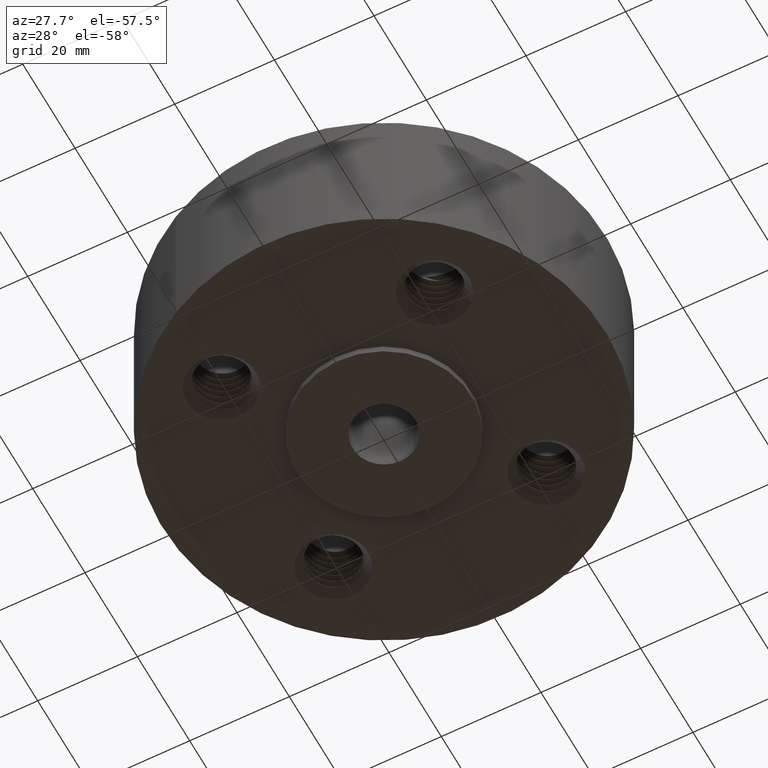
[diagram: clean part render]
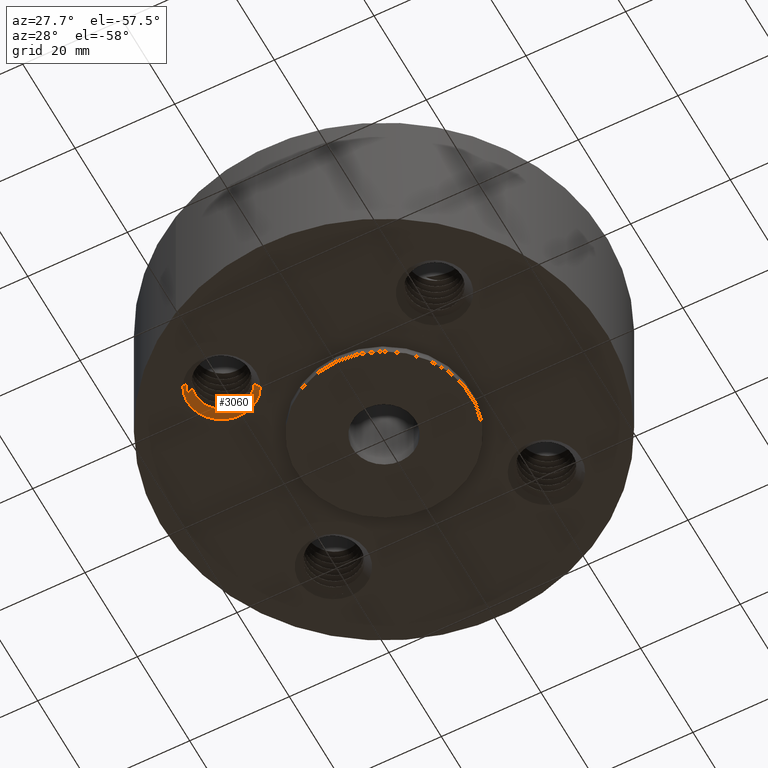
[diagram: same view with one face highlighted and labeled with its STEP entity id]
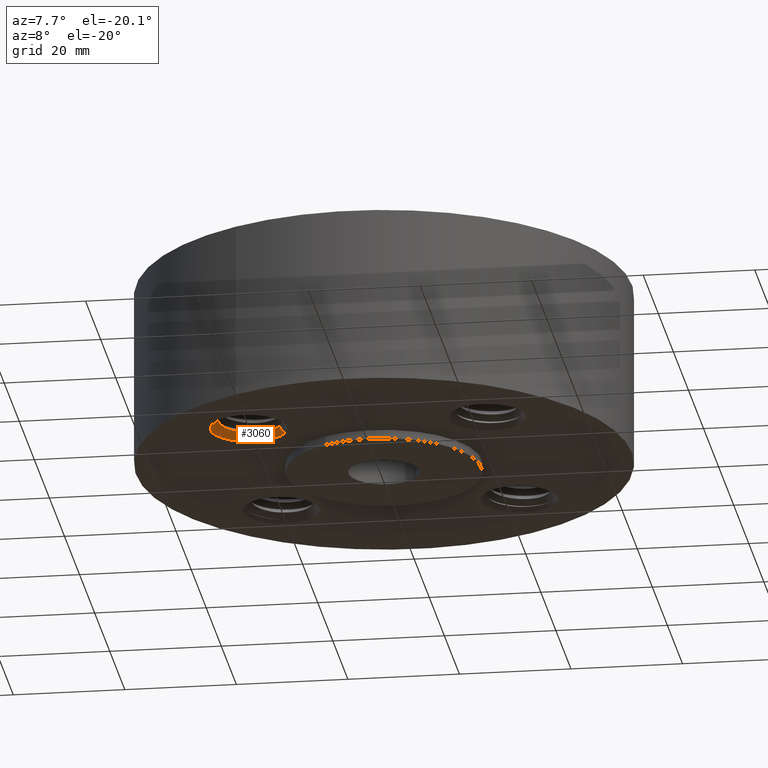
[diagram: same view with one face highlighted and labeled with its STEP entity id]
A machine part, auxiliary view. The second image highlights one B-rep face of the part: STEP entity #3060.
A second angle (auxiliary view) of the same face is appended — the face is thin or edge-on in the first view.
In plain terms, the highlighted conical surface has half-angle 45 deg.
Its self-contained STEP definition (entity closure, byte-faithful):
#2687=AXIS2_PLACEMENT_3D('Circle Axis2P3D',#2685,#2686,$) ;
#2972=AXIS2_PLACEMENT_3D('Cone Axis2P3D',#2969,#2970,#2971) ;
#3047=AXIS2_PLACEMENT_3D('Circle Axis2P3D',#3045,#3046,$) ;
#2685=CARTESIAN_POINT('Axis2P3D Location',(-0.841457069615,-0.841457069615,0.)) ;
#2689=CARTESIAN_POINT('Vertex',(-1.07928194389,-0.971381390578,0.)) ;
#2691=CARTESIAN_POINT('Vertex',(-0.603632195342,-0.711532748653,0.)) ;
#2969=CARTESIAN_POINT('Axis2P3D Location',(-0.841457069615,-0.841457069615,0.0600000000002)) ;
#2975=CARTESIAN_POINT('Control Point',(-1.08885207211,-0.877454643638,0.0209997748122)) ;
#2976=CARTESIAN_POINT('Control Point',(-1.07450743228,-0.88601392063,0.033962479129)) ;
#2977=CARTESIAN_POINT('Control Point',(-1.0597261134,-0.892728257016,0.0469561362139)) ;
#2978=CARTESIAN_POINT('Control Point',(-1.04485704786,-0.897577020166,0.0600000000002)) ;
#2979=CARTESIAN_POINT('Vertex',(-1.08885207211,-0.877454643641,0.0209997748122)) ;
#2981=CARTESIAN_POINT('Vertex',(-1.04485704786,-0.897577020166,0.0600000000002)) ;
#2985=CARTESIAN_POINT('Control Point',(-1.08885207211,-0.877454643641,0.0209997748122)) ;
#2986=CARTESIAN_POINT('Control Point',(-1.08385240522,-0.906674475321,0.0217399723361)) ;
#2987=CARTESIAN_POINT('Control Point',(-1.07362674676,-0.934843819217,0.0224799472173)) ;
#2988=CARTESIAN_POINT('Control Point',(-1.0589044293,-0.96024910362,0.0232200541298)) ;
#2989=CARTESIAN_POINT('Vertex',(-1.0589044293,-0.96024910362,0.0232200541298)) ;
#2992=CARTESIAN_POINT('Line Origine',(-1.06048512473,-0.96111264147,0.0214188612839)) ;
#2997=CARTESIAN_POINT('Line Origine',(-0.6224290145,-0.72180149776,0.0214188612839)) ;
#3001=CARTESIAN_POINT('Vertex',(-0.641225833659,-0.732070246868,0.0428377225678)) ;
#3005=CARTESIAN_POINT('Control Point',(-0.641225833659,-0.732070246868,0.0428377225678)) ;
#3006=CARTESIAN_POINT('Control Point',(-0.653263013117,-0.711401399444,0.0434921680467)) ;
#3007=CARTESIAN_POINT('Control Point',(-0.667964341872,-0.692388388026,0.0441465663685)) ;
#3008=CARTESIAN_POINT('Control Point',(-0.685798651006,-0.674438689044,0.0448346014598)) ;
#3009=CARTESIAN_POINT('Control Point',(-0.721496715823,-0.648045275693,0.0460507310182)) ;
#3010=CARTESIAN_POINT('Control Point',(-0.761369510619,-0.631325316476,0.047247951775)) ;
#3011=CARTESIAN_POINT('Control Point',(-0.778657932887,-0.626157485372,0.0477485954305)) ;
#3012=CARTESIAN_POINT('Control Point',(-0.801691731319,-0.621557511562,0.0484034371831)) ;
#3013=CARTESIAN_POINT('Control Point',(-0.82495066319,-0.620009056459,0.0490582310917)) ;
#3014=CARTESIAN_POINT('Control Point',(-0.830922569333,-0.619813086176,0.0492261835781)) ;
#3015=CARTESIAN_POINT('Control Point',(-0.836891055236,-0.619818165541,0.0493941221599)) ;
#3016=CARTESIAN_POINT('Control Point',(-0.842846996541,-0.620023492021,0.0495620602007)) ;
#3017=CARTESIAN_POINT('Vertex',(-0.842846996541,-0.620023492021,0.0495620602007)) ;
#3021=CARTESIAN_POINT('Control Point',(-0.842846996541,-0.620023492021,0.0495620602007)) ;
#3022=CARTESIAN_POINT('Control Point',(-0.856678831207,-0.620500333844,0.0499520726416)) ;
#3023=CARTESIAN_POINT('Control Point',(-0.870443009342,-0.622057178947,0.0503420822796)) ;
#3024=CARTESIAN_POINT('Control Point',(-0.884128891692,-0.624692302819,0.0507348704244)) ;
#3025=CARTESIAN_POINT('Control Point',(-0.910997421652,-0.632135442574,0.0515231899)) ;
#3026=CARTESIAN_POINT('Control Point',(-0.936243646502,-0.643649933374,0.0523113665308)) ;
#3027=CARTESIAN_POINT('Control Point',(-0.948303880704,-0.650364842526,0.0527040118308)) ;
#3028=CARTESIAN_POINT('Control Point',(-0.971056859913,-0.665448536339,0.0534832489079)) ;
#3029=CARTESIAN_POINT('Control Point',(-0.991102067323,-0.683795732164,0.0542622023892)) ;
#3030=CARTESIAN_POINT('Control Point',(-1.00045944108,-0.693792010367,0.0546550273505)) ;
#3031=CARTESIAN_POINT('Control Point',(-1.0175313327,-0.715251211848,0.0554442096074)) ;
#3032=CARTESIAN_POINT('Control Point',(-1.03095693885,-0.739022955249,0.0562334437899)) ;
#3033=CARTESIAN_POINT('Control Point',(-1.03665852416,-0.751337832377,0.056626320677)) ;
#3034=CARTESIAN_POINT('Control Point',(-1.04456217726,-0.772562379617,0.0572843796971)) ;
#3035=CARTESIAN_POINT('Control Point',(-1.04958571905,-0.794527113375,0.0579427983712)) ;
#3036=CARTESIAN_POINT('Control Point',(-1.05105169106,-0.803193123431,0.0581999631011)) ;
#3037=CARTESIAN_POINT('Control Point',(-1.05312137751,-0.820215257023,0.0587026318932)) ;
#3038=CARTESIAN_POINT('Control Point',(-1.05346925463,-0.837311074248,0.0592052857619)) ;
#3039=CARTESIAN_POINT('Control Point',(-1.05323928742,-0.846049674522,0.0594624355683)) ;
#3040=CARTESIAN_POINT('Control Point',(-1.05247820012,-0.855137448112,0.05973123901)) ;
#3041=CARTESIAN_POINT('Control Point',(-1.05123394151,-0.864143277306,0.0600000000002)) ;
#3042=CARTESIAN_POINT('Vertex',(-1.05123394151,-0.864143277306,0.0600000000002)) ;
#3045=CARTESIAN_POINT('Axis2P3D Location',(-0.841457069615,-0.841457069615,0.0600000000002)) ;
#2686=DIRECTION('Axis2P3D Direction',(0.,0.,-0.0393700787402)) ;
#2970=DIRECTION('Axis2P3D Direction',(-0.,-0.,-0.0393700787402)) ;
#2971=DIRECTION('Axis2P3D XDirection',(0.0345504945626,0.018875021205,0.)) ;
#2993=DIRECTION('Vector Direction',(-0.0244308889986,-0.013346655489,-0.027838849653)) ;
#2998=DIRECTION('Vector Direction',(0.0244308889986,0.013346655489,-0.027838849653)) ;
#3046=DIRECTION('Axis2P3D Direction',(0.,-0.,-0.0393700787402)) ;
#2994=VECTOR('Line Direction',#2993,0.0393700787402) ;
#2999=VECTOR('Line Direction',#2998,0.0393700787402) ;
#3051=ORIENTED_EDGE('',*,*,#2983,.F.) ;
#3052=ORIENTED_EDGE('',*,*,#2991,.T.) ;
#3053=ORIENTED_EDGE('',*,*,#2996,.T.) ;
#3054=ORIENTED_EDGE('',*,*,#2693,.T.) ;
#3055=ORIENTED_EDGE('',*,*,#3003,.F.) ;
#3056=ORIENTED_EDGE('',*,*,#3019,.T.) ;
#3057=ORIENTED_EDGE('',*,*,#3044,.T.) ;
#3058=ORIENTED_EDGE('',*,*,#3049,.T.) ;
#3060=ADVANCED_FACE('PartBody',(#3059),#2973,.F.) ;
#2974=B_SPLINE_CURVE_WITH_KNOTS('',3,(#2975,#2976,#2977,#2978),.UNSPECIFIED.,.F.,.U.,(4,4),(0.,2.28341828243),.UNSPECIFIED.) ;
#2984=B_SPLINE_CURVE_WITH_KNOTS('',3,(#2985,#2986,#2987,#2988),.UNSPECIFIED.,.F.,.U.,(4,4),(0.,3.23395985743),.UNSPECIFIED.) ;
#3004=B_SPLINE_CURVE_WITH_KNOTS('',5,(#3005,#3006,#3007,#3008,#3009,#3010,#3011,#3012,#3013,#3014,#3015,#3016),.UNSPECIFIED.,.F.,.U.,(6,3,3,6),(0.,4.76732097151,8.3117690592,9.53464194303),.UNSPECIFIED.) ;
#3020=B_SPLINE_CURVE_WITH_KNOTS('',5,(#3021,#3022,#3023,#3024,#3025,#3026,#3027,#3028,#3029,#3030,#3031,#3032,#3033,#3034,#3035,#3036,#3037,#3038,#3039,#3040,#3041),.UNSPECIFIED.,.F.,.U.,(6,3,3,3,3,3,6),(0.,2.83995000578,5.67990001155,8.51728468353,11.3546693555,13.3124116218,15.2701538881),.UNSPECIFIED.) ;
#2688=CIRCLE('generated circle',#2687,0.271000000001) ;
#3048=CIRCLE('generated circle',#3047,0.211000000001) ;
#2973=CONICAL_SURFACE('Cone',#2972,0.211000000001,0.785398163397) ;
#2693=EDGE_CURVE('',#2690,#2692,#2688,.T.) ;
#2983=EDGE_CURVE('',#2980,#2982,#2974,.T.) ;
#2991=EDGE_CURVE('',#2980,#2990,#2984,.T.) ;
#2996=EDGE_CURVE('',#2990,#2690,#2995,.T.) ;
#3003=EDGE_CURVE('',#3002,#2692,#3000,.T.) ;
#3019=EDGE_CURVE('',#3002,#3018,#3004,.T.) ;
#3044=EDGE_CURVE('',#3018,#3043,#3020,.T.) ;
#3049=EDGE_CURVE('',#3043,#2982,#3048,.F.) ;
#3050=EDGE_LOOP('',(#3051,#3052,#3053,#3054,#3055,#3056,#3057,#3058)) ;
#3059=FACE_OUTER_BOUND('',#3050,.T.) ;
#2995=LINE('Line',#2992,#2994) ;
#3000=LINE('Line',#2997,#2999) ;
#2690=VERTEX_POINT('',#2689) ;
#2692=VERTEX_POINT('',#2691) ;
#2980=VERTEX_POINT('',#2979) ;
#2982=VERTEX_POINT('',#2981) ;
#2990=VERTEX_POINT('',#2989) ;
#3002=VERTEX_POINT('',#3001) ;
#3018=VERTEX_POINT('',#3017) ;
#3043=VERTEX_POINT('',#3042) ;